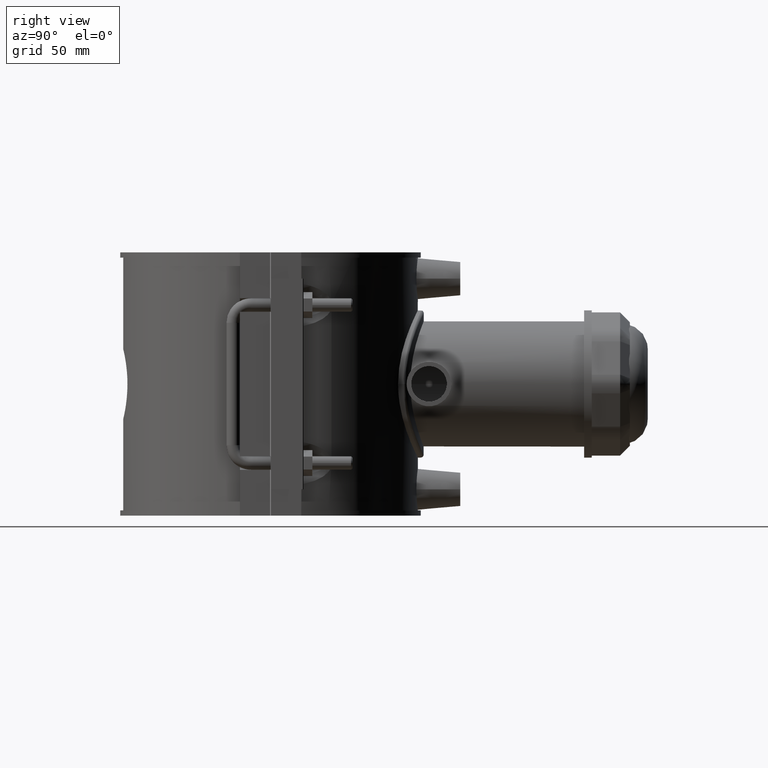
[diagram: clean part render]
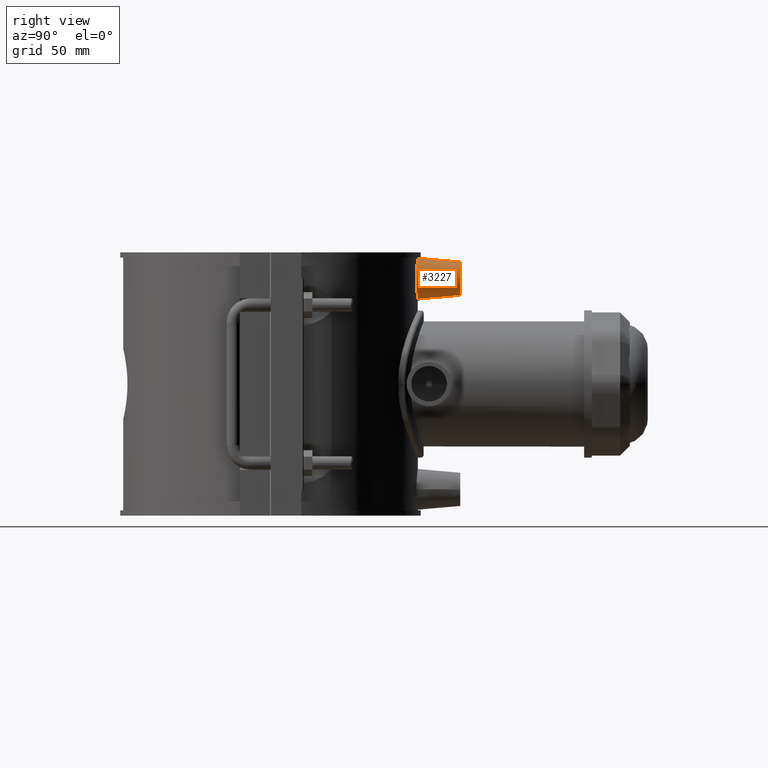
[diagram: same view with one face highlighted and labeled with its STEP entity id]
A machine part, right view. The second image highlights one B-rep face of the part: STEP entity #3227.
In plain terms, the highlighted conical surface has half-angle 5 deg.
Its self-contained STEP definition (entity closure, byte-faithful):
#33=CONICAL_SURFACE('',#3483,7.5,5.);
#800=CIRCLE('',#3484,7.5);
#866=FACE_BOUND('',#1212,.T.);
#999=FACE_OUTER_BOUND('',#1211,.T.);
#1211=EDGE_LOOP('',(#2667));
#1212=EDGE_LOOP('',(#2668));
#1350=B_SPLINE_CURVE_WITH_KNOTS('',3,(#5626,#5627,#5628,#5629,#5630,#5631,
#5632,#5633,#5634,#5635,#5636,#5637,#5638,#5639,#5640,#5641,#5642,#5643,
#5644,#5645,#5646,#5647,#5648,#5649,#5650,#5651,#5652,#5653,#5654,#5655,
#5656,#5657,#5658,#5659),.UNSPECIFIED.,.T.,.F.,(4,2,2,2,2,2,2,2,2,2,2,2,
2,2,2,2,4),(0.,0.346935904986798,0.693871809973595,1.04030921731693,1.38674662466027,
1.73318403200361,2.07962143934695,2.42655734433375,2.77349324932054,3.12042915430734,
3.46736505929414,3.81380246663748,4.16023987398082,4.50667728132415,4.85311468866749,
5.20005059365429,5.54698649864109),.UNSPECIFIED.);
#1517=VERTEX_POINT('',#5625);
#1601=VERTEX_POINT('',#6157);
#1876=EDGE_CURVE('',#1517,#1517,#1350,.T.);
#1994=EDGE_CURVE('',#1601,#1601,#800,.T.);
#2667=ORIENTED_EDGE('',*,*,#1994,.F.);
#2668=ORIENTED_EDGE('',*,*,#1876,.F.);
#3227=ADVANCED_FACE('',(#999,#866),#33,.T.);
#3483=AXIS2_PLACEMENT_3D('',#6156,#4146,#4147);
#3484=AXIS2_PLACEMENT_3D('',#6158,#4148,#4149);
#4146=DIRECTION('center_axis',(0.,-1.,0.));
#4147=DIRECTION('ref_axis',(1.,0.,0.));
#4148=DIRECTION('center_axis',(0.,1.,0.));
#4149=DIRECTION('ref_axis',(1.,0.,0.));
#5625=CARTESIAN_POINT('',(9.21889149209569,65.3529803425748,47.2));
#5626=CARTESIAN_POINT('Ctrl Pts',(-9.21889149209569,65.3529803425748,47.2));
#5627=CARTESIAN_POINT('Ctrl Pts',(-9.21889149209569,65.3529803425748,46.0435469833774));
#5628=CARTESIAN_POINT('Ctrl Pts',(-8.98509660190144,65.3872751603227,44.8119297781224));
#5629=CARTESIAN_POINT('Ctrl Pts',(-8.03868301556763,65.5103601412207,42.5506935355608));
#5630=CARTESIAN_POINT('Ctrl Pts',(-7.32619281653862,65.5972977842866,41.5209202636936));
#5631=CARTESIAN_POINT('Ctrl Pts',(-5.68787926987002,65.7595974634724,39.8987494664931));
#5632=CARTESIAN_POINT('Ctrl Pts',(-4.65283917326548,65.8455692822516,39.1970628078988));
#5633=CARTESIAN_POINT('Ctrl Pts',(-2.38634954577356,65.9666070224349,38.2665218689298));
#5634=CARTESIAN_POINT('Ctrl Pts',(-1.15479135781113,66.,38.0377153930075));
#5635=CARTESIAN_POINT('Ctrl Pts',(1.15479135781113,66.,38.0377153930075));
#5636=CARTESIAN_POINT('Ctrl Pts',(2.38634954577356,65.9666070224349,38.2665218689298));
#5637=CARTESIAN_POINT('Ctrl Pts',(4.65283917326547,65.8455692822516,39.1970628078988));
#5638=CARTESIAN_POINT('Ctrl Pts',(5.68787926987002,65.7595974634724,39.8987494664931));
#5639=CARTESIAN_POINT('Ctrl Pts',(7.32619281653862,65.5972977842866,41.5209202636936));
#5640=CARTESIAN_POINT('Ctrl Pts',(8.03868301556763,65.5103601412207,42.5506935355608));
#5641=CARTESIAN_POINT('Ctrl Pts',(8.98509660190144,65.3872751603227,44.8119297781224));
#5642=CARTESIAN_POINT('Ctrl Pts',(9.21889149209569,65.3529803425748,46.0435469833774));
#5643=CARTESIAN_POINT('Ctrl Pts',(9.21889149209569,65.3529803425748,48.3564530166227));
#5644=CARTESIAN_POINT('Ctrl Pts',(8.98509660190144,65.3872751603227,49.5880702218776));
#5645=CARTESIAN_POINT('Ctrl Pts',(8.03868301556763,65.5103601412207,51.8493064644393));
#5646=CARTESIAN_POINT('Ctrl Pts',(7.32619281653862,65.5972977842866,52.8790797363064));
#5647=CARTESIAN_POINT('Ctrl Pts',(5.68787926987002,65.7595974634724,54.501250533507));
#5648=CARTESIAN_POINT('Ctrl Pts',(4.65283917326547,65.8455692822516,55.2029371921012));
#5649=CARTESIAN_POINT('Ctrl Pts',(2.38634954577356,65.9666070224349,56.1334781310702));
#5650=CARTESIAN_POINT('Ctrl Pts',(1.15479135781113,66.,56.3622846069926));
#5651=CARTESIAN_POINT('Ctrl Pts',(-1.15479135781113,66.,56.3622846069926));
#5652=CARTESIAN_POINT('Ctrl Pts',(-2.38634954577355,65.9666070224349,56.1334781310702));
#5653=CARTESIAN_POINT('Ctrl Pts',(-4.65283917326547,65.8455692822516,55.2029371921012));
#5654=CARTESIAN_POINT('Ctrl Pts',(-5.68787926987002,65.7595974634724,54.501250533507));
#5655=CARTESIAN_POINT('Ctrl Pts',(-7.32619281653862,65.5972977842866,52.8790797363065));
#5656=CARTESIAN_POINT('Ctrl Pts',(-8.03868301556763,65.5103601412207,51.8493064644393));
#5657=CARTESIAN_POINT('Ctrl Pts',(-8.98509660190144,65.3872751603227,49.5880702218776));
#5658=CARTESIAN_POINT('Ctrl Pts',(-9.21889149209569,65.3529803425748,48.3564530166227));
#5659=CARTESIAN_POINT('Ctrl Pts',(-9.21889149209569,65.3529803425748,47.2));
#6156=CARTESIAN_POINT('Origin',(0.,85.,47.2));
#6157=CARTESIAN_POINT('',(-7.5,85.,47.2));
#6158=CARTESIAN_POINT('Origin',(0.,85.,47.2));